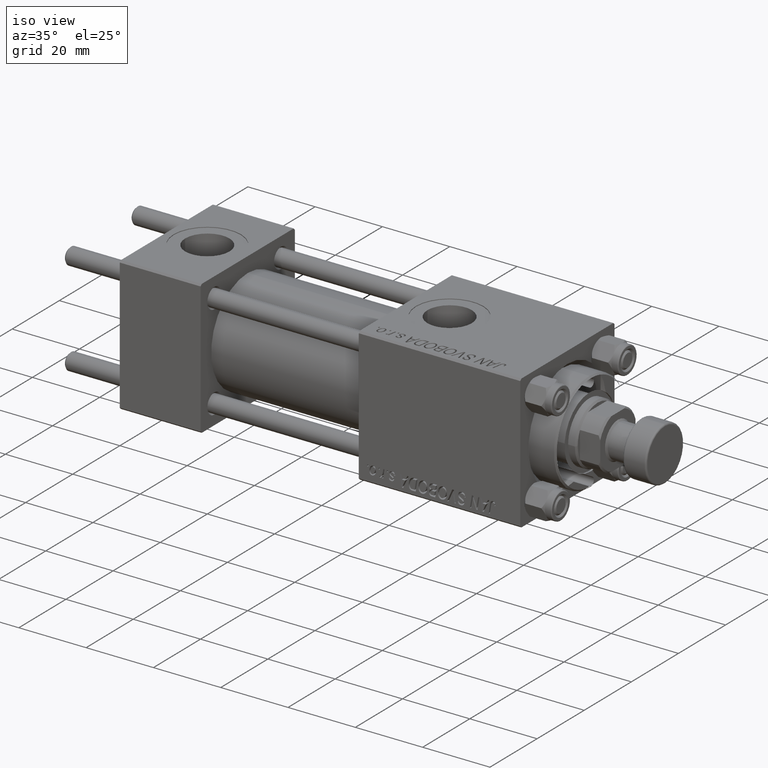
[diagram: clean part render]
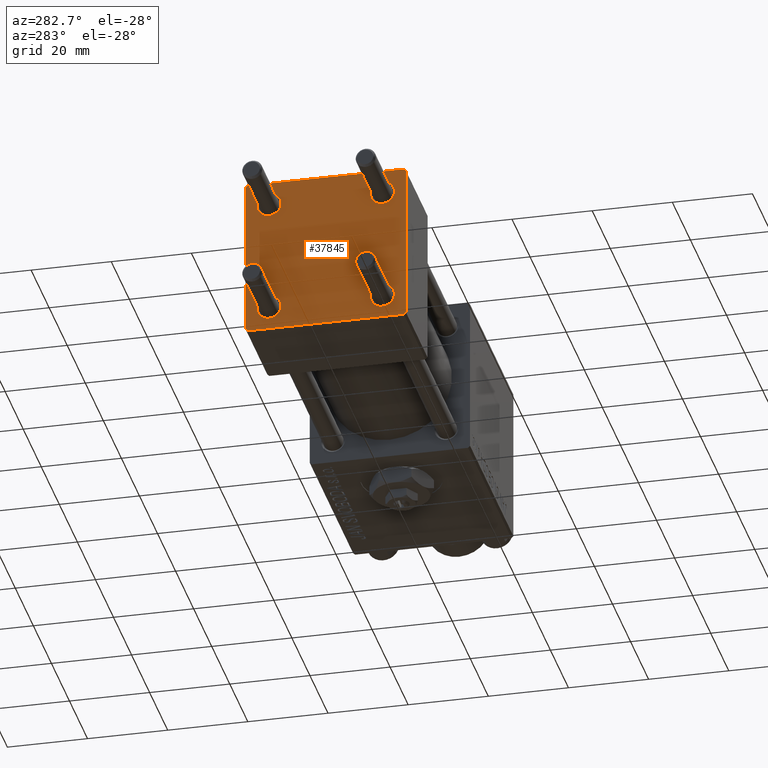
[diagram: tour spotlight — one face highlighted and labeled with its STEP entity id]
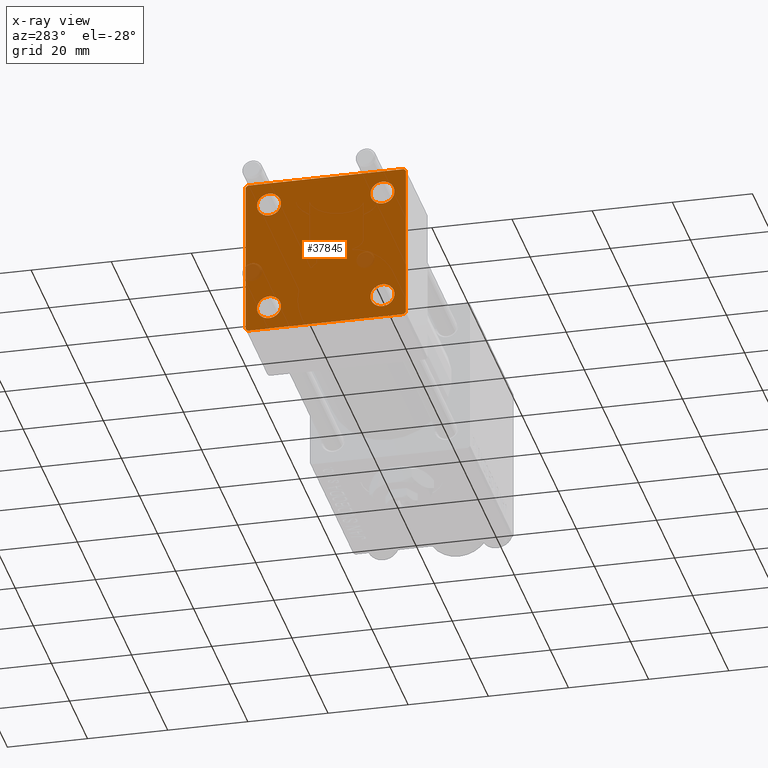
[diagram: x-ray of the same camera — body ghosted, this tour face saturated]
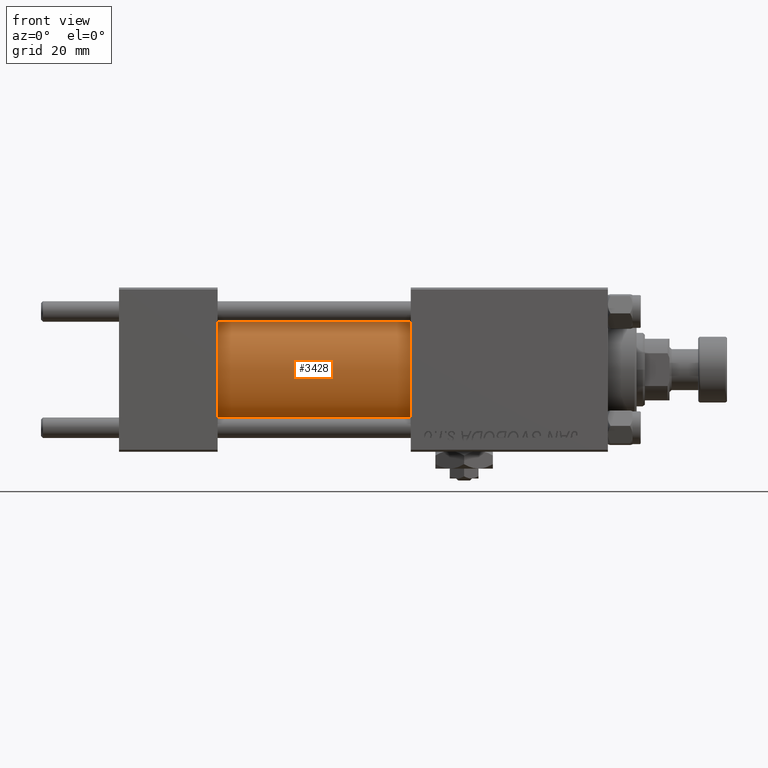
[diagram: tour spotlight — one face highlighted and labeled with its STEP entity id]
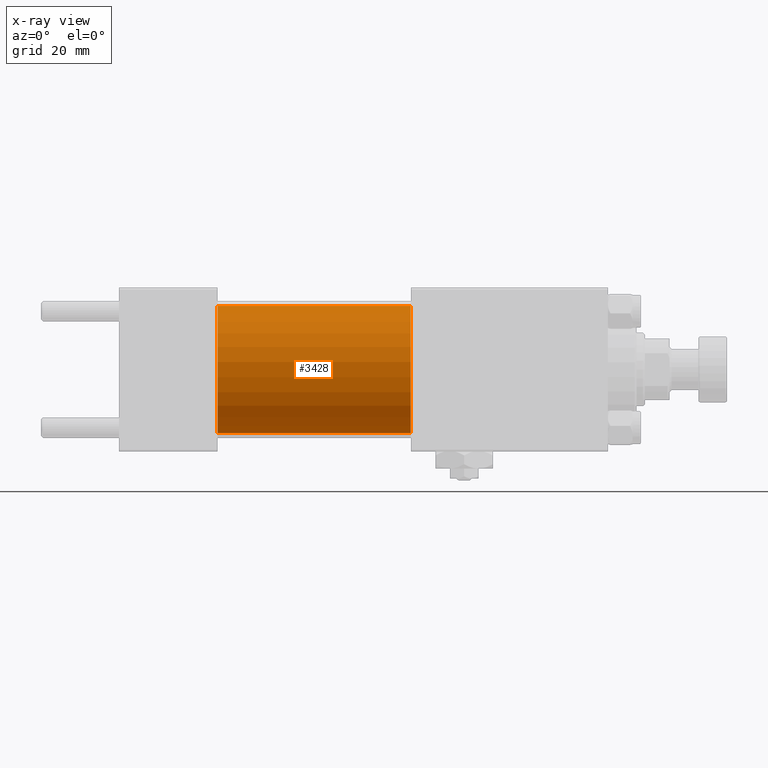
[diagram: x-ray of the same camera — body ghosted, this tour face saturated]
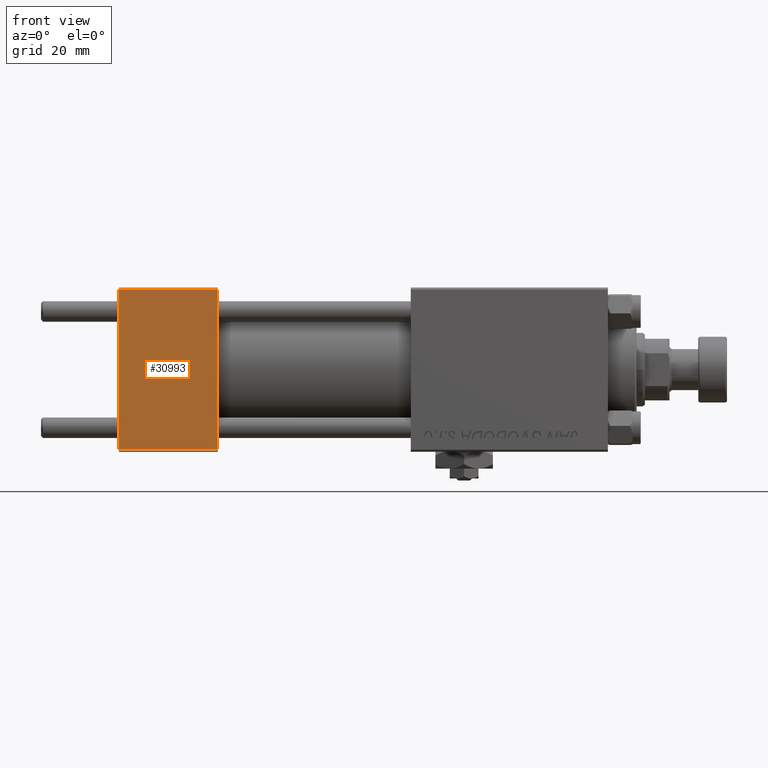
[diagram: tour spotlight — one face highlighted and labeled with its STEP entity id]
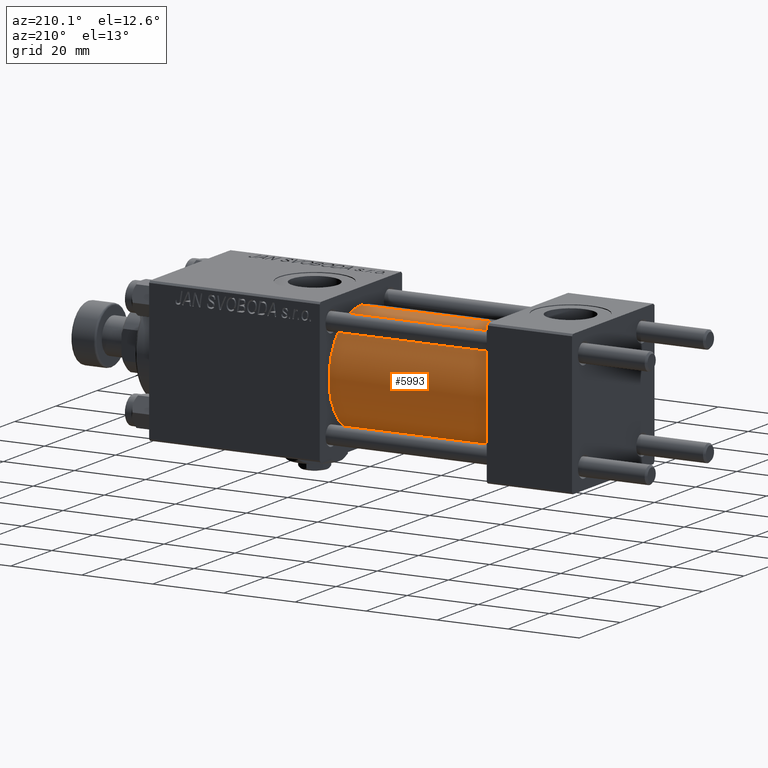
[diagram: tour spotlight — one face highlighted and labeled with its STEP entity id]
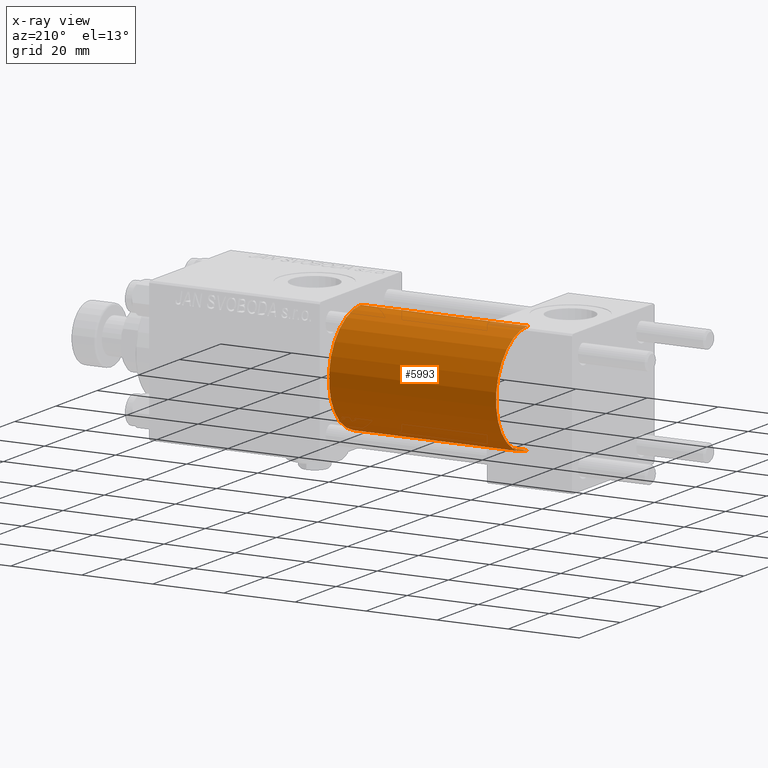
[diagram: x-ray of the same camera — body ghosted, this tour face saturated]
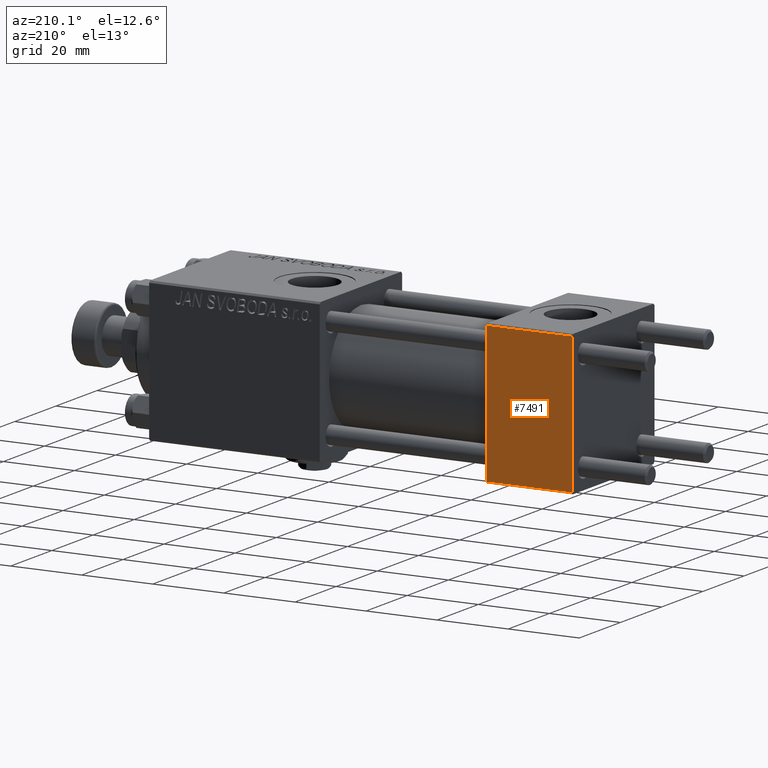
[diagram: tour spotlight — one face highlighted and labeled with its STEP entity id]
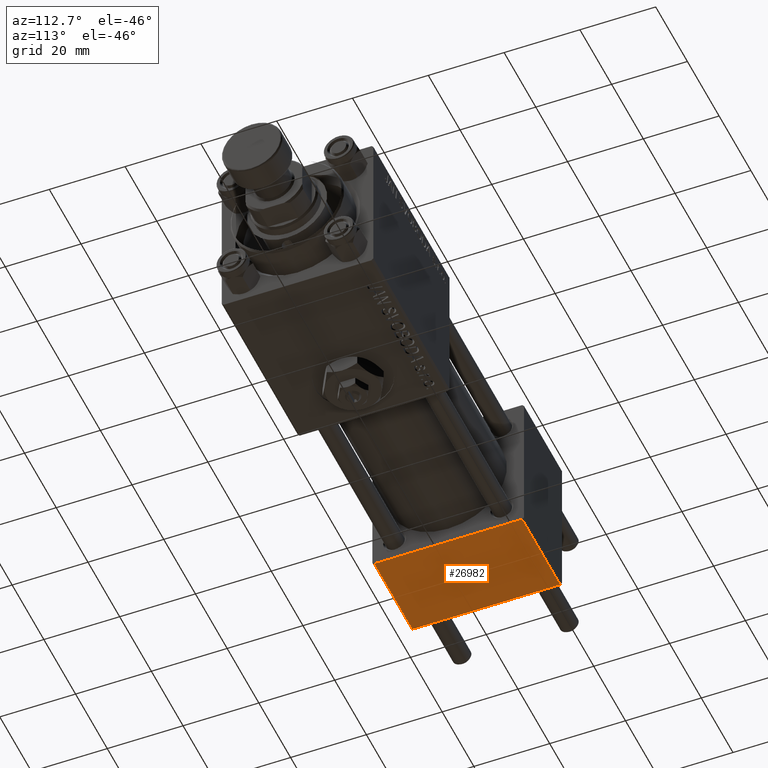
[diagram: tour spotlight — one face highlighted and labeled with its STEP entity id]
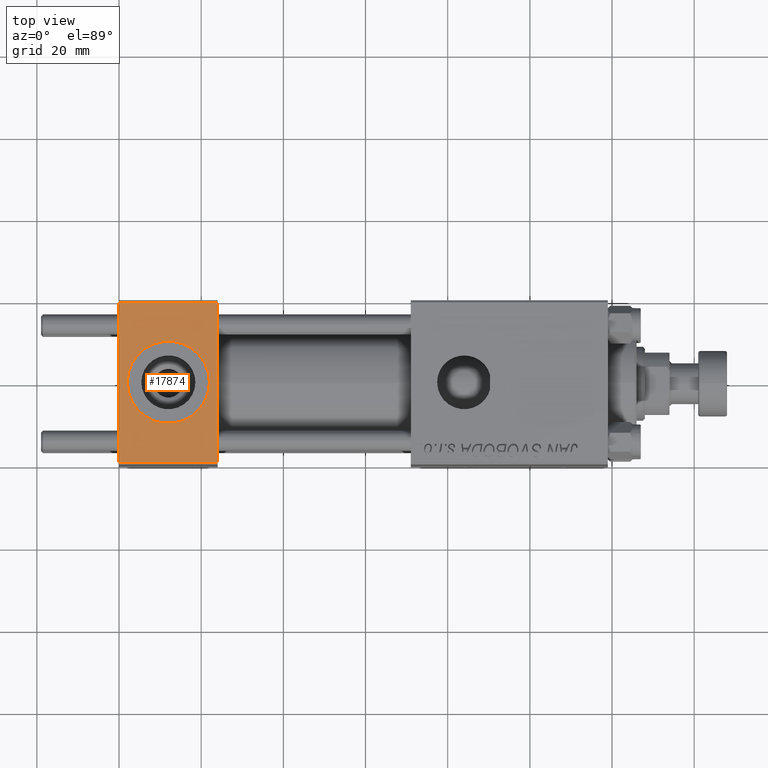
[diagram: tour spotlight — one face highlighted and labeled with its STEP entity id]
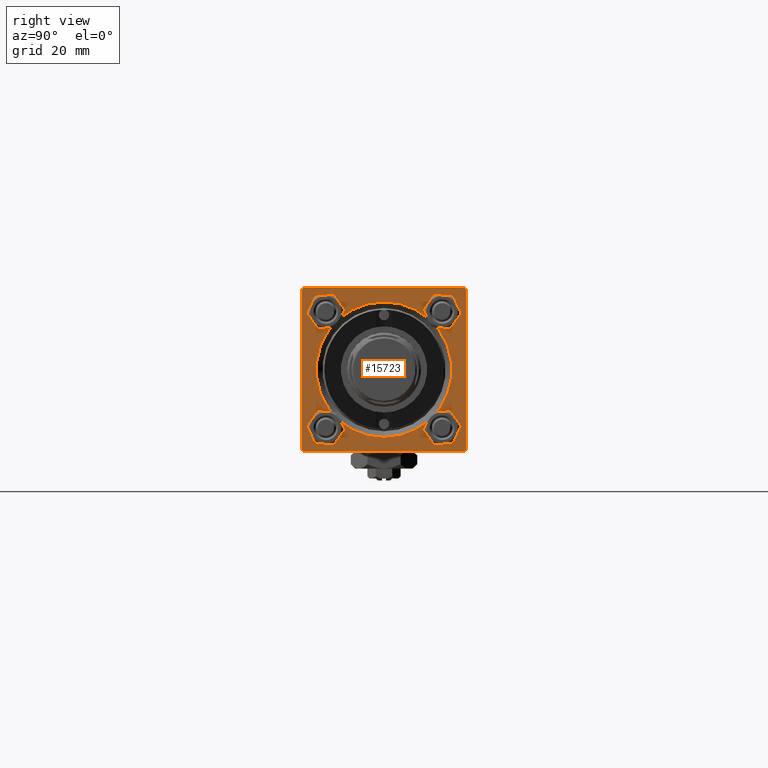
[diagram: tour spotlight — one face highlighted and labeled with its STEP entity id]
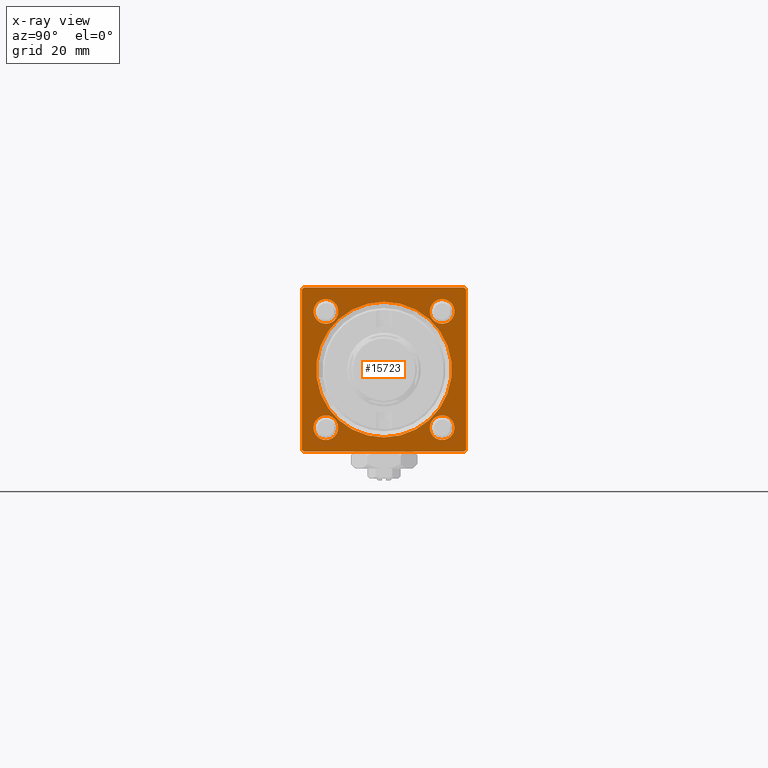
[diagram: x-ray of the same camera — body ghosted, this tour face saturated]
A machine part: a face-by-face anatomy tour. The part has 1195 B-rep faces; the first image is the clean iso view, then the 8 largest visible faces are spotlighted one at a time (largest first), each with its STEP entity span.

Face 1 — auxiliary view, entity #37845. An x-ray twin of the same camera follows (body ghosted, this face saturated) — the face is partly hidden behind the body. In plain terms, the highlighted planar face has unit normal (-1, 0, 0).
Definition (entity closure, byte-faithful):
#26 = DIRECTION ( 'NONE',  ( 0.000000000000000000, 0.000000000000000000, 1.000000000000000000 ) ) ;
#336 = DIRECTION ( 'NONE',  ( 0.000000000000000000, 0.000000000000000000, 1.000000000000000000 ) ) ;
#456 = AXIS2_PLACEMENT_3D ( 'NONE', #24330, #36395, #16419 ) ;
#544 = VERTEX_POINT ( 'NONE', #35439 ) ;
#998 = EDGE_CURVE ( 'NONE', #4123, #14235, #3649, .T. ) ;
#1198 = DIRECTION ( 'NONE',  ( -0.000000000000000000, 0.7071067811865500152, 0.7071067811865451302 ) ) ;
#1207 = CARTESIAN_POINT ( 'NONE',  ( 0.000000000000000000, 14.14999999999999858, -11.15000000000000036 ) ) ;
#1919 = VERTEX_POINT ( 'NONE', #27810 ) ;
#1925 = CARTESIAN_POINT ( 'NONE',  ( 0.000000000000000000, 14.14999999999999858, 14.15000000000000036 ) ) ;
#2115 = VERTEX_POINT ( 'NONE', #22267 ) ;
#3436 = LINE ( 'NONE', #26843, #20609 ) ;
#3638 = ORIENTED_EDGE ( 'NONE', *, *, #48537, .F. ) ;
#3649 = CIRCLE ( 'NONE', #43097, 3.000000000000000888 ) ;
#3826 = CIRCLE ( 'NONE', #456, 3.000000000000000888 ) ;
#4091 = AXIS2_PLACEMENT_3D ( 'NONE', #50044, #40836, #13483 ) ;
#4123 = VERTEX_POINT ( 'NONE', #35575 ) ;
#4464 = ORIENTED_EDGE ( 'NONE', *, *, #33934, .T. ) ;
#5333 = FACE_BOUND ( 'NONE', #10663, .T. ) ;
#6185 = DIRECTION ( 'NONE',  ( 1.000000000000000000, 0.000000000000000000, 0.000000000000000000 ) ) ;
#6237 = ORIENTED_EDGE ( 'NONE', *, *, #28738, .T. ) ;
#6439 = VERTEX_POINT ( 'NONE', #31862 ) ;
#7879 = CARTESIAN_POINT ( 'NONE',  ( 0.000000000000000000, 20.00000000000000000, 20.00000000000000000 ) ) ;
#8202 = CIRCLE ( 'NONE', #30055, 3.000000000000000888 ) ;
#8272 = EDGE_LOOP ( 'NONE', ( #4464, #30400, #17860, #6237, #3638, #31704, #21758, #14385 ) ) ;
#8507 = VERTEX_POINT ( 'NONE', #23865 ) ;
#8814 = CARTESIAN_POINT ( 'NONE',  ( 0.000000000000000000, 14.14999999999999858, 11.14999999999999858 ) ) ;
#9009 = FACE_BOUND ( 'NONE', #48988, .T. ) ;
#9365 = VERTEX_POINT ( 'NONE', #33051 ) ;
#9742 = ORIENTED_EDGE ( 'NONE', *, *, #35928, .T. ) ;
#9955 = EDGE_CURVE ( 'NONE', #8507, #2115, #38249, .T. ) ;
#10076 = EDGE_CURVE ( 'NONE', #6439, #9365, #23952, .T. ) ;
#10663 = EDGE_LOOP ( 'NONE', ( #26794, #27376 ) ) ;
#10804 = DIRECTION ( 'NONE',  ( 0.000000000000000000, 8.673617379884036705E-17, -1.000000000000000000 ) ) ;
#10835 = VECTOR ( 'NONE', #41203, 1000.000000000000000 ) ;
#11295 = CARTESIAN_POINT ( 'NONE',  ( 0.000000000000000000, 14.14999999999999858, 14.15000000000000036 ) ) ;
#11341 = ORIENTED_EDGE ( 'NONE', *, *, #37206, .T. ) ;
#11513 = CARTESIAN_POINT ( 'NONE',  ( -0.000000000000000000, 19.75000000000013500, 19.74999999999986144 ) ) ;
#11589 = EDGE_CURVE ( 'NONE', #9365, #6439, #49283, .T. ) ;
#11831 = LINE ( 'NONE', #7879, #36622 ) ;
#12087 = DIRECTION ( 'NONE',  ( 1.000000000000000000, 0.000000000000000000, 0.000000000000000000 ) ) ;
#12199 = AXIS2_PLACEMENT_3D ( 'NONE', #26173, #6185, #29847 ) ;
#12830 = VERTEX_POINT ( 'NONE', #22497 ) ;
#13068 = EDGE_CURVE ( 'NONE', #21232, #1919, #24118, .T. ) ;
#13475 = VERTEX_POINT ( 'NONE', #23843 ) ;
#13483 = DIRECTION ( 'NONE',  ( -0.000000000000000000, 0.000000000000000000, 1.000000000000000000 ) ) ;
#14235 = VERTEX_POINT ( 'NONE', #39487 ) ;
#14385 = ORIENTED_EDGE ( 'NONE', *, *, #51924, .T. ) ;
#14482 = EDGE_LOOP ( 'NONE', ( #40772, #42909 ) ) ;
#15076 = CARTESIAN_POINT ( 'NONE',  ( 0.000000000000000000, -19.75000000000020961, -19.74999999999979394 ) ) ;
#15107 = CARTESIAN_POINT ( 'NONE',  ( 0.000000000000000000, 20.00000000000000000, -20.00000000000000711 ) ) ;
#16310 = CARTESIAN_POINT ( 'NONE',  ( 0.000000000000000000, -20.00000000000000000, -19.49999999999999645 ) ) ;
#16419 = DIRECTION ( 'NONE',  ( 0.000000000000000000, 0.000000000000000000, 1.000000000000000000 ) ) ;
#16752 = LINE ( 'NONE', #28328, #10835 ) ;
#17860 = ORIENTED_EDGE ( 'NONE', *, *, #44389, .T. ) ;
#18509 = CARTESIAN_POINT ( 'NONE',  ( 0.000000000000000000, -19.50000000000000711, -20.00000000000000000 ) ) ;
#19561 = LINE ( 'NONE', #15107, #34372 ) ;
#19656 = LINE ( 'NONE', #11513, #40874 ) ;
#19999 = CARTESIAN_POINT ( 'NONE',  ( 0.000000000000000000, 14.14999999999999858, -14.15000000000000036 ) ) ;
#20319 = DIRECTION ( 'NONE',  ( 1.000000000000000000, 0.000000000000000000, 0.000000000000000000 ) ) ;
#20511 = DIRECTION ( 'NONE',  ( 0.000000000000000000, 0.000000000000000000, -1.000000000000000000 ) ) ;
#20609 = VECTOR ( 'NONE', #10804, 1000.000000000000000 ) ;
#20628 = VECTOR ( 'NONE', #1198, 1000.000000000000114 ) ;
#21232 = VERTEX_POINT ( 'NONE', #8814 ) ;
#21758 = ORIENTED_EDGE ( 'NONE', *, *, #46281, .F. ) ;
#22222 = VERTEX_POINT ( 'NONE', #1207 ) ;
#22267 = CARTESIAN_POINT ( 'NONE',  ( 0.000000000000000000, -19.49999999999999289, 19.99999999999998934 ) ) ;
#22363 = DIRECTION ( 'NONE',  ( 1.000000000000000000, 0.000000000000000000, 0.000000000000000000 ) ) ;
#22497 = CARTESIAN_POINT ( 'NONE',  ( 0.000000000000000000, 20.00000000000000000, 19.49999999999999289 ) ) ;
#22666 = DIRECTION ( 'NONE',  ( 1.000000000000000000, 0.000000000000000000, 0.000000000000000000 ) ) ;
#23570 = VECTOR ( 'NONE', #48600, 1000.000000000000000 ) ;
#23843 = CARTESIAN_POINT ( 'NONE',  ( 0.000000000000000000, 14.14999999999999858, -17.15000000000000213 ) ) ;
#23865 = CARTESIAN_POINT ( 'NONE',  ( 0.000000000000000000, -20.00000000000000355, 19.49999999999998224 ) ) ;
#23952 = CIRCLE ( 'NONE', #12199, 3.000000000000000888 ) ;
#24118 = CIRCLE ( 'NONE', #50155, 3.000000000000000888 ) ;
#24330 = CARTESIAN_POINT ( 'NONE',  ( 0.000000000000000000, -14.14999999999999503, -14.15000000000000391 ) ) ;
#24735 = ORIENTED_EDGE ( 'NONE', *, *, #31193, .T. ) ;
#25068 = FACE_OUTER_BOUND ( 'NONE', #8272, .T. ) ;
#26173 = CARTESIAN_POINT ( 'NONE',  ( 0.000000000000000000, -14.14999999999999503, 14.15000000000000391 ) ) ;
#26659 = DIRECTION ( 'NONE',  ( 0.000000000000000000, -0.7071067811865401342, 0.7071067811865549002 ) ) ;
#26794 = ORIENTED_EDGE ( 'NONE', *, *, #39078, .T. ) ;
#26843 = CARTESIAN_POINT ( 'NONE',  ( 0.000000000000000000, -20.00000000000000355, 19.99999999999998934 ) ) ;
#26947 = DIRECTION ( 'NONE',  ( 0.000000000000000000, -1.000000000000000000, 1.734723475976807094E-16 ) ) ;
#27376 = ORIENTED_EDGE ( 'NONE', *, *, #13068, .T. ) ;
#27810 = CARTESIAN_POINT ( 'NONE',  ( 0.000000000000000000, 14.14999999999999858, 17.15000000000000568 ) ) ;
#28089 = VECTOR ( 'NONE', #26659, 1000.000000000000000 ) ;
#28328 = CARTESIAN_POINT ( 'NONE',  ( -0.000000000000000000, 19.74999999999986855, -19.75000000000014211 ) ) ;
#28738 = EDGE_CURVE ( 'NONE', #34583, #38046, #35062, .T. ) ;
#29533 = DIRECTION ( 'NONE',  ( 0.000000000000000000, 0.000000000000000000, 1.000000000000000000 ) ) ;
#29754 = ORIENTED_EDGE ( 'NONE', *, *, #998, .T. ) ;
#29847 = DIRECTION ( 'NONE',  ( 0.000000000000000000, 0.000000000000000000, 1.000000000000000000 ) ) ;
#30055 = AXIS2_PLACEMENT_3D ( 'NONE', #34227, #22666, #42365 ) ;
#30103 = CIRCLE ( 'NONE', #40977, 3.000000000000000888 ) ;
#30400 = ORIENTED_EDGE ( 'NONE', *, *, #39495, .T. ) ;
#31193 = EDGE_CURVE ( 'NONE', #14235, #4123, #3826, .T. ) ;
#31704 = ORIENTED_EDGE ( 'NONE', *, *, #9955, .T. ) ;
#31747 = LINE ( 'NONE', #44096, #23570 ) ;
#31862 = CARTESIAN_POINT ( 'NONE',  ( 0.000000000000000000, -14.14999999999999503, 17.15000000000000568 ) ) ;
#32053 = DIRECTION ( 'NONE',  ( 1.000000000000000000, 0.000000000000000000, 0.000000000000000000 ) ) ;
#33051 = CARTESIAN_POINT ( 'NONE',  ( 0.000000000000000000, -14.14999999999999503, 11.15000000000000213 ) ) ;
#33200 = PLANE ( 'NONE',  #4091 ) ;
#33934 = EDGE_CURVE ( 'NONE', #12830, #46866, #11831, .T. ) ;
#33977 = FACE_BOUND ( 'NONE', #14482, .T. ) ;
#34227 = CARTESIAN_POINT ( 'NONE',  ( 0.000000000000000000, 14.14999999999999858, -14.15000000000000036 ) ) ;
#34372 = VECTOR ( 'NONE', #26947, 1000.000000000000000 ) ;
#34583 = VERTEX_POINT ( 'NONE', #18509 ) ;
#34636 = CARTESIAN_POINT ( 'NONE',  ( 0.000000000000000000, 20.00000000000000000, -19.50000000000002132 ) ) ;
#34957 = CARTESIAN_POINT ( 'NONE',  ( 0.000000000000000000, -14.14999999999999503, 14.15000000000000391 ) ) ;
#35062 = LINE ( 'NONE', #15076, #28089 ) ;
#35439 = CARTESIAN_POINT ( 'NONE',  ( 0.000000000000000000, 19.50000000000000711, -20.00000000000000711 ) ) ;
#35575 = CARTESIAN_POINT ( 'NONE',  ( 0.000000000000000000, -14.14999999999999503, -17.15000000000000568 ) ) ;
#35805 = AXIS2_PLACEMENT_3D ( 'NONE', #34957, #22363, #38382 ) ;
#35928 = EDGE_CURVE ( 'NONE', #22222, #13475, #8202, .T. ) ;
#36016 = AXIS2_PLACEMENT_3D ( 'NONE', #11295, #32053, #39433 ) ;
#36395 = DIRECTION ( 'NONE',  ( 1.000000000000000000, 0.000000000000000000, 0.000000000000000000 ) ) ;
#36622 = VECTOR ( 'NONE', #20511, 1000.000000000000000 ) ;
#37206 = EDGE_CURVE ( 'NONE', #13475, #22222, #30103, .T. ) ;
#37845 = ADVANCED_FACE ( 'NONE', ( #33977, #9009, #41880, #5333, #25068 ), #33200, .T. ) ;
#38046 = VERTEX_POINT ( 'NONE', #16310 ) ;
#38249 = LINE ( 'NONE', #41685, #20628 ) ;
#38382 = DIRECTION ( 'NONE',  ( 0.000000000000000000, 0.000000000000000000, 1.000000000000000000 ) ) ;
#39078 = EDGE_CURVE ( 'NONE', #1919, #21232, #46102, .T. ) ;
#39433 = DIRECTION ( 'NONE',  ( 0.000000000000000000, 0.000000000000000000, 1.000000000000000000 ) ) ;
#39487 = CARTESIAN_POINT ( 'NONE',  ( 0.000000000000000000, -14.14999999999999503, -11.15000000000000391 ) ) ;
#39495 = EDGE_CURVE ( 'NONE', #46866, #544, #16752, .T. ) ;
#40163 = DIRECTION ( 'NONE',  ( 0.000000000000000000, 0.7071067811865425767, -0.7071067811865525687 ) ) ;
#40772 = ORIENTED_EDGE ( 'NONE', *, *, #10076, .T. ) ;
#40836 = DIRECTION ( 'NONE',  ( -1.000000000000000000, 0.000000000000000000, -0.000000000000000000 ) ) ;
#40874 = VECTOR ( 'NONE', #40163, 999.9999999999998863 ) ;
#40977 = AXIS2_PLACEMENT_3D ( 'NONE', #19999, #12087, #26 ) ;
#41203 = DIRECTION ( 'NONE',  ( -0.000000000000000000, -0.7071067811865524577, -0.7071067811865426878 ) ) ;
#41685 = CARTESIAN_POINT ( 'NONE',  ( -0.000000000000000000, -19.74999999999992539, 19.75000000000006395 ) ) ;
#41880 = FACE_BOUND ( 'NONE', #46364, .T. ) ;
#42365 = DIRECTION ( 'NONE',  ( 0.000000000000000000, 0.000000000000000000, 1.000000000000000000 ) ) ;
#42909 = ORIENTED_EDGE ( 'NONE', *, *, #11589, .T. ) ;
#43097 = AXIS2_PLACEMENT_3D ( 'NONE', #43970, #20319, #336 ) ;
#43970 = CARTESIAN_POINT ( 'NONE',  ( 0.000000000000000000, -14.14999999999999503, -14.15000000000000391 ) ) ;
#44096 = CARTESIAN_POINT ( 'NONE',  ( 0.000000000000000000, 20.00000000000000000, 20.00000000000000000 ) ) ;
#44389 = EDGE_CURVE ( 'NONE', #544, #34583, #19561, .T. ) ;
#46102 = CIRCLE ( 'NONE', #36016, 3.000000000000000888 ) ;
#46175 = CARTESIAN_POINT ( 'NONE',  ( 0.000000000000000000, 19.50000000000000000, 20.00000000000000000 ) ) ;
#46281 = EDGE_CURVE ( 'NONE', #48966, #2115, #31747, .T. ) ;
#46360 = DIRECTION ( 'NONE',  ( 1.000000000000000000, 0.000000000000000000, 0.000000000000000000 ) ) ;
#46364 = EDGE_LOOP ( 'NONE', ( #9742, #11341 ) ) ;
#46866 = VERTEX_POINT ( 'NONE', #34636 ) ;
#48537 = EDGE_CURVE ( 'NONE', #8507, #38046, #3436, .T. ) ;
#48600 = DIRECTION ( 'NONE',  ( 0.000000000000000000, -1.000000000000000000, -2.602085213965210149E-16 ) ) ;
#48966 = VERTEX_POINT ( 'NONE', #46175 ) ;
#48988 = EDGE_LOOP ( 'NONE', ( #24735, #29754 ) ) ;
#49283 = CIRCLE ( 'NONE', #35805, 3.000000000000000888 ) ;
#50044 = CARTESIAN_POINT ( 'NONE',  ( 0.000000000000000000, 0.000000000000000000, 0.000000000000000000 ) ) ;
#50155 = AXIS2_PLACEMENT_3D ( 'NONE', #1925, #46360, #29533 ) ;
#51924 = EDGE_CURVE ( 'NONE', #48966, #12830, #19656, .T. ) ;

Face 2 — front view, entity #3428. An x-ray twin of the same camera follows (body ghosted, this face saturated) — the face is partly hidden behind the body. In plain terms, the highlighted cylindrical surface (partial cylindrical patch) has radius 15.5 mm, axis along (-1, -0, -0).
Definition (entity closure, byte-faithful):
#344 = DIRECTION ( 'NONE',  ( -1.000000000000000000, -0.000000000000000000, -0.000000000000000000 ) ) ;
#948 = VERTEX_POINT ( 'NONE', #7698 ) ;
#2290 = VERTEX_POINT ( 'NONE', #28530 ) ;
#2911 = CARTESIAN_POINT ( 'NONE',  ( 24.00000000000000000, 0.000000000000000000, 0.000000000000000000 ) ) ;
#3428 = ADVANCED_FACE ( 'NONE', ( #20062 ), #24007, .T. ) ;
#4199 = VECTOR ( 'NONE', #43630, 1000.000000000000000 ) ;
#4769 = EDGE_LOOP ( 'NONE', ( #15587, #35665, #43015, #51201 ) ) ;
#4946 = CIRCLE ( 'NONE', #34316, 15.50000000000000000 ) ;
#7698 = CARTESIAN_POINT ( 'NONE',  ( 71.00000000000001421, 1.898202538678397557E-15, -15.50000000000000000 ) ) ;
#10087 = VERTEX_POINT ( 'NONE', #41163 ) ;
#10444 = AXIS2_PLACEMENT_3D ( 'NONE', #12679, #344, #40036 ) ;
#10754 = AXIS2_PLACEMENT_3D ( 'NONE', #32459, #49037, #40600 ) ;
#12679 = CARTESIAN_POINT ( 'NONE',  ( 71.00000000000001421, 0.000000000000000000, 0.000000000000000000 ) ) ;
#14774 = EDGE_CURVE ( 'NONE', #10087, #948, #38436, .T. ) ;
#15587 = ORIENTED_EDGE ( 'NONE', *, *, #45180, .F. ) ;
#17745 = VERTEX_POINT ( 'NONE', #21618 ) ;
#17908 = EDGE_CURVE ( 'NONE', #17745, #2290, #4946, .T. ) ;
#18947 = DIRECTION ( 'NONE',  ( 1.000000000000000000, 0.000000000000000000, 0.000000000000000000 ) ) ;
#20062 = FACE_OUTER_BOUND ( 'NONE', #4769, .T. ) ;
#21482 = DIRECTION ( 'NONE',  ( -1.000000000000000000, -0.000000000000000000, -0.000000000000000000 ) ) ;
#21618 = CARTESIAN_POINT ( 'NONE',  ( 24.00000000000000000, 0.000000000000000000, 15.50000000000000000 ) ) ;
#23648 = LINE ( 'NONE', #31528, #4199 ) ;
#24007 = CYLINDRICAL_SURFACE ( 'NONE', #10444, 15.50000000000000000 ) ;
#27356 = DIRECTION ( 'NONE',  ( 0.000000000000000000, 0.000000000000000000, 1.000000000000000000 ) ) ;
#27533 = EDGE_CURVE ( 'NONE', #10087, #17745, #49108, .T. ) ;
#28530 = CARTESIAN_POINT ( 'NONE',  ( 24.00000000000000000, 1.898202538678397557E-15, -15.50000000000000000 ) ) ;
#31528 = CARTESIAN_POINT ( 'NONE',  ( 71.00000000000001421, 1.898202538678397557E-15, -15.50000000000000000 ) ) ;
#32459 = CARTESIAN_POINT ( 'NONE',  ( 71.00000000000001421, 0.000000000000000000, 0.000000000000000000 ) ) ;
#34316 = AXIS2_PLACEMENT_3D ( 'NONE', #2911, #18947, #27356 ) ;
#35665 = ORIENTED_EDGE ( 'NONE', *, *, #14774, .F. ) ;
#38436 = CIRCLE ( 'NONE', #10754, 15.50000000000000000 ) ;
#40036 = DIRECTION ( 'NONE',  ( 0.000000000000000000, 0.000000000000000000, 1.000000000000000000 ) ) ;
#40600 = DIRECTION ( 'NONE',  ( 0.000000000000000000, 0.000000000000000000, -1.000000000000000000 ) ) ;
#41163 = CARTESIAN_POINT ( 'NONE',  ( 71.00000000000001421, 0.000000000000000000, 15.50000000000000000 ) ) ;
#41622 = VECTOR ( 'NONE', #21482, 1000.000000000000000 ) ;
#43015 = ORIENTED_EDGE ( 'NONE', *, *, #27533, .T. ) ;
#43630 = DIRECTION ( 'NONE',  ( -1.000000000000000000, -0.000000000000000000, -0.000000000000000000 ) ) ;
#45180 = EDGE_CURVE ( 'NONE', #948, #2290, #23648, .T. ) ;
#49037 = DIRECTION ( 'NONE',  ( 1.000000000000000000, 0.000000000000000000, 0.000000000000000000 ) ) ;
#49108 = LINE ( 'NONE', #49639, #41622 ) ;
#49639 = CARTESIAN_POINT ( 'NONE',  ( 71.00000000000001421, 0.000000000000000000, 15.50000000000000000 ) ) ;
#51201 = ORIENTED_EDGE ( 'NONE', *, *, #17908, .T. ) ;

Face 3 — front view, entity #30993. In plain terms, the highlighted planar face has unit normal (0, 1, 0).
Definition (entity closure, byte-faithful):
#3342 = ORIENTED_EDGE ( 'NONE', *, *, #18719, .F. ) ;
#3436 = LINE ( 'NONE', #26843, #20609 ) ;
#4292 = VERTEX_POINT ( 'NONE', #17422 ) ;
#4669 = VECTOR ( 'NONE', #26327, 1000.000000000000000 ) ;
#6605 = CARTESIAN_POINT ( 'NONE',  ( 24.00000000000000000, -20.00000000000000000, -19.49999999999999645 ) ) ;
#8507 = VERTEX_POINT ( 'NONE', #23865 ) ;
#8625 = CARTESIAN_POINT ( 'NONE',  ( 24.00000000000000000, -20.00000000000000355, 19.49999999999998224 ) ) ;
#10804 = DIRECTION ( 'NONE',  ( 0.000000000000000000, 8.673617379884036705E-17, -1.000000000000000000 ) ) ;
#16310 = CARTESIAN_POINT ( 'NONE',  ( 0.000000000000000000, -20.00000000000000000, -19.49999999999999645 ) ) ;
#17422 = CARTESIAN_POINT ( 'NONE',  ( 24.00000000000000000, -20.00000000000000355, 19.49999999999998224 ) ) ;
#18719 = EDGE_CURVE ( 'NONE', #4292, #26039, #29212, .T. ) ;
#20609 = VECTOR ( 'NONE', #10804, 1000.000000000000000 ) ;
#21903 = EDGE_CURVE ( 'NONE', #4292, #8507, #37019, .T. ) ;
#23158 = LINE ( 'NONE', #6605, #4669 ) ;
#23865 = CARTESIAN_POINT ( 'NONE',  ( 0.000000000000000000, -20.00000000000000355, 19.49999999999998224 ) ) ;
#25169 = CARTESIAN_POINT ( 'NONE',  ( 24.00000000000000000, -20.00000000000000355, 19.99999999999998934 ) ) ;
#26039 = VERTEX_POINT ( 'NONE', #44661 ) ;
#26327 = DIRECTION ( 'NONE',  ( 1.000000000000000000, 0.000000000000000000, 0.000000000000000000 ) ) ;
#26843 = CARTESIAN_POINT ( 'NONE',  ( 0.000000000000000000, -20.00000000000000355, 19.99999999999998934 ) ) ;
#29212 = LINE ( 'NONE', #45005, #33542 ) ;
#30993 = ADVANCED_FACE ( 'NONE', ( #44880 ), #49106, .F. ) ;
#32378 = DIRECTION ( 'NONE',  ( 0.000000000000000000, 8.673617379884036705E-17, -1.000000000000000000 ) ) ;
#32561 = DIRECTION ( 'NONE',  ( -1.000000000000000000, 0.000000000000000000, 0.000000000000000000 ) ) ;
#33542 = VECTOR ( 'NONE', #32378, 1000.000000000000000 ) ;
#33837 = ORIENTED_EDGE ( 'NONE', *, *, #48467, .T. ) ;
#33858 = VECTOR ( 'NONE', #32561, 1000.000000000000000 ) ;
#37019 = LINE ( 'NONE', #8625, #33858 ) ;
#37147 = EDGE_LOOP ( 'NONE', ( #48886, #33837, #3342, #44122 ) ) ;
#38046 = VERTEX_POINT ( 'NONE', #16310 ) ;
#38539 = DIRECTION ( 'NONE',  ( -0.000000000000000000, 1.000000000000000000, 8.673617379884036705E-17 ) ) ;
#42486 = DIRECTION ( 'NONE',  ( 0.000000000000000000, -8.673617379884036705E-17, 1.000000000000000000 ) ) ;
#43272 = AXIS2_PLACEMENT_3D ( 'NONE', #25169, #38539, #42486 ) ;
#44122 = ORIENTED_EDGE ( 'NONE', *, *, #21903, .T. ) ;
#44661 = CARTESIAN_POINT ( 'NONE',  ( 24.00000000000000000, -20.00000000000000000, -19.49999999999999645 ) ) ;
#44880 = FACE_OUTER_BOUND ( 'NONE', #37147, .T. ) ;
#45005 = CARTESIAN_POINT ( 'NONE',  ( 24.00000000000000000, -20.00000000000000355, 19.99999999999998934 ) ) ;
#48467 = EDGE_CURVE ( 'NONE', #38046, #26039, #23158, .T. ) ;
#48537 = EDGE_CURVE ( 'NONE', #8507, #38046, #3436, .T. ) ;
#48886 = ORIENTED_EDGE ( 'NONE', *, *, #48537, .T. ) ;
#49106 = PLANE ( 'NONE',  #43272 ) ;

Face 4 — auxiliary view, entity #5993. An x-ray twin of the same camera follows (body ghosted, this face saturated) — the face is partly hidden behind the body. In plain terms, the highlighted cylindrical surface (partial cylindrical patch) has radius 15.5 mm, axis along (-1, -0, -0).
Definition (entity closure, byte-faithful):
#948 = VERTEX_POINT ( 'NONE', #7698 ) ;
#2290 = VERTEX_POINT ( 'NONE', #28530 ) ;
#4199 = VECTOR ( 'NONE', #43630, 1000.000000000000000 ) ;
#5993 = ADVANCED_FACE ( 'NONE', ( #46190 ), #49879, .T. ) ;
#7635 = AXIS2_PLACEMENT_3D ( 'NONE', #22772, #39038, #39304 ) ;
#7698 = CARTESIAN_POINT ( 'NONE',  ( 71.00000000000001421, 1.898202538678397557E-15, -15.50000000000000000 ) ) ;
#10087 = VERTEX_POINT ( 'NONE', #41163 ) ;
#12265 = EDGE_LOOP ( 'NONE', ( #21180, #41608, #38805, #22810 ) ) ;
#15458 = AXIS2_PLACEMENT_3D ( 'NONE', #33299, #30380, #38276 ) ;
#17745 = VERTEX_POINT ( 'NONE', #21618 ) ;
#21180 = ORIENTED_EDGE ( 'NONE', *, *, #47235, .F. ) ;
#21482 = DIRECTION ( 'NONE',  ( -1.000000000000000000, -0.000000000000000000, -0.000000000000000000 ) ) ;
#21618 = CARTESIAN_POINT ( 'NONE',  ( 24.00000000000000000, 0.000000000000000000, 15.50000000000000000 ) ) ;
#22772 = CARTESIAN_POINT ( 'NONE',  ( 71.00000000000001421, 0.000000000000000000, 0.000000000000000000 ) ) ;
#22810 = ORIENTED_EDGE ( 'NONE', *, *, #27533, .F. ) ;
#23648 = LINE ( 'NONE', #31528, #4199 ) ;
#27533 = EDGE_CURVE ( 'NONE', #10087, #17745, #49108, .T. ) ;
#28530 = CARTESIAN_POINT ( 'NONE',  ( 24.00000000000000000, 1.898202538678397557E-15, -15.50000000000000000 ) ) ;
#30380 = DIRECTION ( 'NONE',  ( -1.000000000000000000, -0.000000000000000000, -0.000000000000000000 ) ) ;
#31138 = CIRCLE ( 'NONE', #7635, 15.50000000000000000 ) ;
#31528 = CARTESIAN_POINT ( 'NONE',  ( 71.00000000000001421, 1.898202538678397557E-15, -15.50000000000000000 ) ) ;
#31684 = DIRECTION ( 'NONE',  ( 0.000000000000000000, 0.000000000000000000, 1.000000000000000000 ) ) ;
#33299 = CARTESIAN_POINT ( 'NONE',  ( 71.00000000000001421, 0.000000000000000000, 0.000000000000000000 ) ) ;
#35370 = DIRECTION ( 'NONE',  ( 1.000000000000000000, 0.000000000000000000, 0.000000000000000000 ) ) ;
#35687 = CIRCLE ( 'NONE', #43281, 15.50000000000000000 ) ;
#38276 = DIRECTION ( 'NONE',  ( 0.000000000000000000, 0.000000000000000000, 1.000000000000000000 ) ) ;
#38805 = ORIENTED_EDGE ( 'NONE', *, *, #47870, .T. ) ;
#39038 = DIRECTION ( 'NONE',  ( 1.000000000000000000, 0.000000000000000000, 0.000000000000000000 ) ) ;
#39304 = DIRECTION ( 'NONE',  ( 0.000000000000000000, 0.000000000000000000, -1.000000000000000000 ) ) ;
#39570 = CARTESIAN_POINT ( 'NONE',  ( 24.00000000000000000, 0.000000000000000000, 0.000000000000000000 ) ) ;
#41163 = CARTESIAN_POINT ( 'NONE',  ( 71.00000000000001421, 0.000000000000000000, 15.50000000000000000 ) ) ;
#41608 = ORIENTED_EDGE ( 'NONE', *, *, #45180, .T. ) ;
#41622 = VECTOR ( 'NONE', #21482, 1000.000000000000000 ) ;
#43281 = AXIS2_PLACEMENT_3D ( 'NONE', #39570, #35370, #31684 ) ;
#43630 = DIRECTION ( 'NONE',  ( -1.000000000000000000, -0.000000000000000000, -0.000000000000000000 ) ) ;
#45180 = EDGE_CURVE ( 'NONE', #948, #2290, #23648, .T. ) ;
#46190 = FACE_OUTER_BOUND ( 'NONE', #12265, .T. ) ;
#47235 = EDGE_CURVE ( 'NONE', #948, #10087, #31138, .T. ) ;
#47870 = EDGE_CURVE ( 'NONE', #2290, #17745, #35687, .T. ) ;
#49108 = LINE ( 'NONE', #49639, #41622 ) ;
#49639 = CARTESIAN_POINT ( 'NONE',  ( 71.00000000000001421, 0.000000000000000000, 15.50000000000000000 ) ) ;
#49879 = CYLINDRICAL_SURFACE ( 'NONE', #15458, 15.50000000000000000 ) ;

Face 5 — auxiliary view, entity #7491. In plain terms, the highlighted planar face has unit normal (0, 1, 0).
Definition (entity closure, byte-faithful):
#3463 = VERTEX_POINT ( 'NONE', #27695 ) ;
#3813 = ORIENTED_EDGE ( 'NONE', *, *, #41337, .T. ) ;
#3967 = VECTOR ( 'NONE', #23563, 1000.000000000000000 ) ;
#5172 = DIRECTION ( 'NONE',  ( 1.000000000000000000, 0.000000000000000000, 0.000000000000000000 ) ) ;
#6471 = PLANE ( 'NONE',  #40694 ) ;
#7491 = ADVANCED_FACE ( 'NONE', ( #42480 ), #6471, .T. ) ;
#7606 = DIRECTION ( 'NONE',  ( 0.000000000000000000, 0.000000000000000000, -1.000000000000000000 ) ) ;
#7879 = CARTESIAN_POINT ( 'NONE',  ( 0.000000000000000000, 20.00000000000000000, 20.00000000000000000 ) ) ;
#11732 = VECTOR ( 'NONE', #7606, 1000.000000000000000 ) ;
#11831 = LINE ( 'NONE', #7879, #36622 ) ;
#12830 = VERTEX_POINT ( 'NONE', #22497 ) ;
#16920 = VERTEX_POINT ( 'NONE', #40477 ) ;
#20511 = DIRECTION ( 'NONE',  ( 0.000000000000000000, 0.000000000000000000, -1.000000000000000000 ) ) ;
#22497 = CARTESIAN_POINT ( 'NONE',  ( 0.000000000000000000, 20.00000000000000000, 19.49999999999999289 ) ) ;
#23563 = DIRECTION ( 'NONE',  ( -1.000000000000000000, 0.000000000000000000, 0.000000000000000000 ) ) ;
#27695 = CARTESIAN_POINT ( 'NONE',  ( 24.00000000000000000, 20.00000000000000000, 19.49999999999999289 ) ) ;
#28818 = LINE ( 'NONE', #41189, #29382 ) ;
#29382 = VECTOR ( 'NONE', #5172, 1000.000000000000000 ) ;
#29611 = CARTESIAN_POINT ( 'NONE',  ( 24.00000000000000000, 20.00000000000000000, 20.00000000000000000 ) ) ;
#32045 = ORIENTED_EDGE ( 'NONE', *, *, #35342, .T. ) ;
#32303 = CARTESIAN_POINT ( 'NONE',  ( 24.00000000000000000, 20.00000000000000000, 20.00000000000000000 ) ) ;
#32478 = LINE ( 'NONE', #39830, #3967 ) ;
#33934 = EDGE_CURVE ( 'NONE', #12830, #46866, #11831, .T. ) ;
#34636 = CARTESIAN_POINT ( 'NONE',  ( 0.000000000000000000, 20.00000000000000000, -19.50000000000002132 ) ) ;
#35342 = EDGE_CURVE ( 'NONE', #16920, #46866, #32478, .T. ) ;
#36622 = VECTOR ( 'NONE', #20511, 1000.000000000000000 ) ;
#38008 = DIRECTION ( 'NONE',  ( -0.000000000000000000, 1.000000000000000000, 0.000000000000000000 ) ) ;
#38899 = ORIENTED_EDGE ( 'NONE', *, *, #33934, .F. ) ;
#39830 = CARTESIAN_POINT ( 'NONE',  ( 24.00000000000000000, 20.00000000000000000, -19.50000000000002132 ) ) ;
#40477 = CARTESIAN_POINT ( 'NONE',  ( 24.00000000000000000, 20.00000000000000000, -19.50000000000002132 ) ) ;
#40694 = AXIS2_PLACEMENT_3D ( 'NONE', #29611, #38008, #45662 ) ;
#41067 = EDGE_CURVE ( 'NONE', #3463, #16920, #44144, .T. ) ;
#41189 = CARTESIAN_POINT ( 'NONE',  ( 24.00000000000000000, 20.00000000000000000, 19.49999999999999289 ) ) ;
#41337 = EDGE_CURVE ( 'NONE', #12830, #3463, #28818, .T. ) ;
#42480 = FACE_OUTER_BOUND ( 'NONE', #50050, .T. ) ;
#42751 = ORIENTED_EDGE ( 'NONE', *, *, #41067, .T. ) ;
#44144 = LINE ( 'NONE', #32303, #11732 ) ;
#45662 = DIRECTION ( 'NONE',  ( 0.000000000000000000, -0.000000000000000000, 1.000000000000000000 ) ) ;
#46866 = VERTEX_POINT ( 'NONE', #34636 ) ;
#50050 = EDGE_LOOP ( 'NONE', ( #42751, #32045, #38899, #3813 ) ) ;

Face 6 — auxiliary view, entity #26982. In plain terms, the highlighted planar face has unit normal (0, -0, -1).
Definition (entity closure, byte-faithful):
#544 = VERTEX_POINT ( 'NONE', #35439 ) ;
#783 = VECTOR ( 'NONE', #14837, 1000.000000000000000 ) ;
#2199 = FACE_OUTER_BOUND ( 'NONE', #29015, .T. ) ;
#2966 = CARTESIAN_POINT ( 'NONE',  ( 24.00000000000000000, 20.00000000000000000, -20.00000000000000711 ) ) ;
#3670 = VECTOR ( 'NONE', #20166, 1000.000000000000000 ) ;
#3778 = CARTESIAN_POINT ( 'NONE',  ( 0.000000000000000000, -19.50000000000000711, -20.00000000000000000 ) ) ;
#4712 = CARTESIAN_POINT ( 'NONE',  ( 24.00000000000000000, 19.50000000000000711, -20.00000000000000711 ) ) ;
#11179 = CARTESIAN_POINT ( 'NONE',  ( 24.00000000000000000, 19.50000000000000711, -20.00000000000000711 ) ) ;
#14621 = VERTEX_POINT ( 'NONE', #11179 ) ;
#14837 = DIRECTION ( 'NONE',  ( -1.000000000000000000, 0.000000000000000000, 0.000000000000000000 ) ) ;
#15107 = CARTESIAN_POINT ( 'NONE',  ( 0.000000000000000000, 20.00000000000000000, -20.00000000000000711 ) ) ;
#15143 = CARTESIAN_POINT ( 'NONE',  ( 24.00000000000000000, -19.50000000000000711, -20.00000000000000000 ) ) ;
#15949 = CARTESIAN_POINT ( 'NONE',  ( 24.00000000000000000, 20.00000000000000000, -20.00000000000000711 ) ) ;
#18509 = CARTESIAN_POINT ( 'NONE',  ( 0.000000000000000000, -19.50000000000000711, -20.00000000000000000 ) ) ;
#18997 = DIRECTION ( 'NONE',  ( 0.000000000000000000, -1.734723475976806848E-16, -1.000000000000000000 ) ) ;
#19561 = LINE ( 'NONE', #15107, #34372 ) ;
#20166 = DIRECTION ( 'NONE',  ( 0.000000000000000000, -1.000000000000000000, 1.734723475976807094E-16 ) ) ;
#22703 = DIRECTION ( 'NONE',  ( 0.000000000000000000, 1.000000000000000000, -1.734723475976806848E-16 ) ) ;
#23180 = EDGE_CURVE ( 'NONE', #14621, #43141, #48585, .T. ) ;
#24897 = ORIENTED_EDGE ( 'NONE', *, *, #43644, .T. ) ;
#26947 = DIRECTION ( 'NONE',  ( 0.000000000000000000, -1.000000000000000000, 1.734723475976807094E-16 ) ) ;
#26982 = ADVANCED_FACE ( 'NONE', ( #2199 ), #38204, .T. ) ;
#28270 = ORIENTED_EDGE ( 'NONE', *, *, #23180, .T. ) ;
#28954 = VECTOR ( 'NONE', #36505, 1000.000000000000000 ) ;
#29015 = EDGE_LOOP ( 'NONE', ( #40098, #50617, #28270, #24897 ) ) ;
#29759 = EDGE_CURVE ( 'NONE', #544, #14621, #37547, .T. ) ;
#29844 = AXIS2_PLACEMENT_3D ( 'NONE', #2966, #18997, #22703 ) ;
#34372 = VECTOR ( 'NONE', #26947, 1000.000000000000000 ) ;
#34583 = VERTEX_POINT ( 'NONE', #18509 ) ;
#35439 = CARTESIAN_POINT ( 'NONE',  ( 0.000000000000000000, 19.50000000000000711, -20.00000000000000711 ) ) ;
#36505 = DIRECTION ( 'NONE',  ( 1.000000000000000000, 0.000000000000000000, 0.000000000000000000 ) ) ;
#37547 = LINE ( 'NONE', #4712, #28954 ) ;
#38204 = PLANE ( 'NONE',  #29844 ) ;
#39017 = LINE ( 'NONE', #3778, #783 ) ;
#40098 = ORIENTED_EDGE ( 'NONE', *, *, #44389, .F. ) ;
#43141 = VERTEX_POINT ( 'NONE', #15143 ) ;
#43644 = EDGE_CURVE ( 'NONE', #43141, #34583, #39017, .T. ) ;
#44389 = EDGE_CURVE ( 'NONE', #544, #34583, #19561, .T. ) ;
#48585 = LINE ( 'NONE', #15949, #3670 ) ;
#50617 = ORIENTED_EDGE ( 'NONE', *, *, #29759, .T. ) ;

Face 7 — top view, entity #17874. In plain terms, the highlighted planar face has unit normal (0, 0, -1).
Definition (entity closure, byte-faithful):
#1492 = VECTOR ( 'NONE', #32176, 1000.000000000000000 ) ;
#2115 = VERTEX_POINT ( 'NONE', #22267 ) ;
#2406 = CARTESIAN_POINT ( 'NONE',  ( 24.00000000000000000, 20.00000000000000000, 20.00000000000000000 ) ) ;
#2681 = CARTESIAN_POINT ( 'NONE',  ( 24.00000000000000000, 20.00000000000000000, 20.00000000000000000 ) ) ;
#4365 = DIRECTION ( 'NONE',  ( -1.000000000000000000, 0.000000000000000000, 0.000000000000000000 ) ) ;
#6346 = AXIS2_PLACEMENT_3D ( 'NONE', #29615, #29089, #13044 ) ;
#6553 = DIRECTION ( 'NONE',  ( 0.000000000000000000, 0.000000000000000000, 1.000000000000000000 ) ) ;
#6631 = LINE ( 'NONE', #2681, #7181 ) ;
#6813 = DIRECTION ( 'NONE',  ( 1.000000000000000000, 0.000000000000000000, 0.000000000000000000 ) ) ;
#7150 = CIRCLE ( 'NONE', #6346, 9.999999999999998224 ) ;
#7181 = VECTOR ( 'NONE', #31066, 1000.000000000000000 ) ;
#9145 = EDGE_CURVE ( 'NONE', #34547, #51214, #49992, .T. ) ;
#10455 = EDGE_CURVE ( 'NONE', #45232, #39404, #6631, .T. ) ;
#10483 = CARTESIAN_POINT ( 'NONE',  ( 12.00000000000000000, 1.540743955509788682E-30, 19.99999999999999645 ) ) ;
#10773 = CARTESIAN_POINT ( 'NONE',  ( 22.00000000000000000, 1.540743955509788682E-30, 19.99999999999999645 ) ) ;
#10807 = FACE_OUTER_BOUND ( 'NONE', #46709, .T. ) ;
#12920 = ORIENTED_EDGE ( 'NONE', *, *, #24304, .T. ) ;
#13044 = DIRECTION ( 'NONE',  ( 1.000000000000000000, 0.000000000000000000, 0.000000000000000000 ) ) ;
#13152 = ORIENTED_EDGE ( 'NONE', *, *, #10455, .F. ) ;
#13944 = EDGE_CURVE ( 'NONE', #2115, #39404, #48515, .T. ) ;
#15875 = ORIENTED_EDGE ( 'NONE', *, *, #13944, .T. ) ;
#17874 = ADVANCED_FACE ( 'NONE', ( #31557, #10807 ), #42883, .F. ) ;
#18432 = DIRECTION ( 'NONE',  ( 0.000000000000000000, 2.602085213965210149E-16, -1.000000000000000000 ) ) ;
#18833 = VECTOR ( 'NONE', #4365, 1000.000000000000000 ) ;
#19611 = CARTESIAN_POINT ( 'NONE',  ( 0.000000000000000000, 19.50000000000000000, 20.00000000000000000 ) ) ;
#22267 = CARTESIAN_POINT ( 'NONE',  ( 0.000000000000000000, -19.49999999999999289, 19.99999999999998934 ) ) ;
#22733 = CARTESIAN_POINT ( 'NONE',  ( 2.000000000000003553, 1.224646799147354440E-15, 19.99999999999999645 ) ) ;
#22919 = ORIENTED_EDGE ( 'NONE', *, *, #46281, .T. ) ;
#23424 = DIRECTION ( 'NONE',  ( 0.000000000000000000, 1.000000000000000000, 2.602085213965210149E-16 ) ) ;
#23570 = VECTOR ( 'NONE', #48600, 1000.000000000000000 ) ;
#24304 = EDGE_CURVE ( 'NONE', #45232, #48966, #27511, .T. ) ;
#24332 = ORIENTED_EDGE ( 'NONE', *, *, #30965, .F. ) ;
#26480 = AXIS2_PLACEMENT_3D ( 'NONE', #10483, #6553, #6813 ) ;
#27511 = LINE ( 'NONE', #19611, #18833 ) ;
#29089 = DIRECTION ( 'NONE',  ( 0.000000000000000000, 0.000000000000000000, 1.000000000000000000 ) ) ;
#29273 = CARTESIAN_POINT ( 'NONE',  ( 24.00000000000000000, -19.49999999999999289, 19.99999999999998934 ) ) ;
#29615 = CARTESIAN_POINT ( 'NONE',  ( 12.00000000000000000, 1.540743955509788682E-30, 19.99999999999999645 ) ) ;
#30965 = EDGE_CURVE ( 'NONE', #51214, #34547, #7150, .T. ) ;
#31057 = EDGE_LOOP ( 'NONE', ( #24332, #31063 ) ) ;
#31063 = ORIENTED_EDGE ( 'NONE', *, *, #9145, .F. ) ;
#31066 = DIRECTION ( 'NONE',  ( 0.000000000000000000, -1.000000000000000000, -2.602085213965210149E-16 ) ) ;
#31557 = FACE_BOUND ( 'NONE', #31057, .T. ) ;
#31747 = LINE ( 'NONE', #44096, #23570 ) ;
#32176 = DIRECTION ( 'NONE',  ( 1.000000000000000000, 0.000000000000000000, 0.000000000000000000 ) ) ;
#34547 = VERTEX_POINT ( 'NONE', #22733 ) ;
#36250 = CARTESIAN_POINT ( 'NONE',  ( 24.00000000000000000, 19.50000000000000000, 20.00000000000000000 ) ) ;
#38343 = CARTESIAN_POINT ( 'NONE',  ( 24.00000000000000000, -19.49999999999999289, 19.99999999999998934 ) ) ;
#39404 = VERTEX_POINT ( 'NONE', #38343 ) ;
#42883 = PLANE ( 'NONE',  #51981 ) ;
#44096 = CARTESIAN_POINT ( 'NONE',  ( 0.000000000000000000, 20.00000000000000000, 20.00000000000000000 ) ) ;
#45232 = VERTEX_POINT ( 'NONE', #36250 ) ;
#46175 = CARTESIAN_POINT ( 'NONE',  ( 0.000000000000000000, 19.50000000000000000, 20.00000000000000000 ) ) ;
#46281 = EDGE_CURVE ( 'NONE', #48966, #2115, #31747, .T. ) ;
#46709 = EDGE_LOOP ( 'NONE', ( #22919, #15875, #13152, #12920 ) ) ;
#48515 = LINE ( 'NONE', #29273, #1492 ) ;
#48600 = DIRECTION ( 'NONE',  ( 0.000000000000000000, -1.000000000000000000, -2.602085213965210149E-16 ) ) ;
#48966 = VERTEX_POINT ( 'NONE', #46175 ) ;
#49992 = CIRCLE ( 'NONE', #26480, 9.999999999999998224 ) ;
#51214 = VERTEX_POINT ( 'NONE', #10773 ) ;
#51981 = AXIS2_PLACEMENT_3D ( 'NONE', #2406, #18432, #23424 ) ;

Face 8 — right view, entity #15723. An x-ray twin of the same camera follows (body ghosted, this face saturated) — the face is partly hidden behind the body. In plain terms, the highlighted planar face has unit normal (-1, 0, 0).
Definition (entity closure, byte-faithful):
#165 = VERTEX_POINT ( 'NONE', #25039 ) ;
#584 = LINE ( 'NONE', #33161, #33143 ) ;
#1122 = DIRECTION ( 'NONE',  ( -1.000000000000000000, -0.000000000000000000, -0.000000000000000000 ) ) ;
#1209 = VERTEX_POINT ( 'NONE', #25304 ) ;
#1274 = EDGE_CURVE ( 'NONE', #50557, #31980, #10043, .T. ) ;
#1319 = CIRCLE ( 'NONE', #16388, 3.000000000000004441 ) ;
#1834 = CARTESIAN_POINT ( 'NONE',  ( 119.0000000000000142, 19.49999999999996803, 20.00000000000000000 ) ) ;
#1850 = ORIENTED_EDGE ( 'NONE', *, *, #14689, .T. ) ;
#1993 = EDGE_CURVE ( 'NONE', #3639, #13075, #28867, .T. ) ;
#2185 = CARTESIAN_POINT ( 'NONE',  ( 119.0000000000000142, -14.15000000000000036, -17.15000000000000568 ) ) ;
#3050 = CIRCLE ( 'NONE', #51737, 3.000000000000004441 ) ;
#3586 = ORIENTED_EDGE ( 'NONE', *, *, #31517, .T. ) ;
#3639 = VERTEX_POINT ( 'NONE', #24473 ) ;
#4300 = EDGE_CURVE ( 'NONE', #18339, #26877, #20546, .T. ) ;
#4479 = ORIENTED_EDGE ( 'NONE', *, *, #37530, .T. ) ;
#4716 = CARTESIAN_POINT ( 'NONE',  ( 119.0000000000000142, -14.15000000000000036, 14.15000000000000036 ) ) ;
#4845 = DIRECTION ( 'NONE',  ( -0.000000000000000000, 0.000000000000000000, 1.000000000000000000 ) ) ;
#4891 = VECTOR ( 'NONE', #8366, 1000.000000000000114 ) ;
#5342 = EDGE_CURVE ( 'NONE', #1209, #19418, #46658, .T. ) ;
#5446 = CARTESIAN_POINT ( 'NONE',  ( 119.0000000000000142, -14.15000000000000036, -14.15000000000000036 ) ) ;
#5630 = EDGE_LOOP ( 'NONE', ( #27206, #8475, #28388, #4479, #46867, #30228, #1850, #9998 ) ) ;
#6195 = DIRECTION ( 'NONE',  ( 0.000000000000000000, 8.673617379884036705E-17, -1.000000000000000000 ) ) ;
#6222 = CARTESIAN_POINT ( 'NONE',  ( 119.0000000000000142, -20.00000000000000355, 19.50000000000002487 ) ) ;
#7896 = ORIENTED_EDGE ( 'NONE', *, *, #4300, .T. ) ;
#7965 = EDGE_CURVE ( 'NONE', #50557, #26241, #584, .T. ) ;
#8366 = DIRECTION ( 'NONE',  ( -0.000000000000000000, 0.7071067811865474617, 0.7071067811865474617 ) ) ;
#8475 = ORIENTED_EDGE ( 'NONE', *, *, #26810, .T. ) ;
#8508 = FACE_BOUND ( 'NONE', #12423, .T. ) ;
#9231 = CARTESIAN_POINT ( 'NONE',  ( 119.0000000000000142, 14.15000000000000036, -11.14999999999999680 ) ) ;
#9513 = VECTOR ( 'NONE', #38926, 999.9999999999998863 ) ;
#9891 = DIRECTION ( 'NONE',  ( 0.000000000000000000, 0.000000000000000000, 1.000000000000000000 ) ) ;
#9998 = ORIENTED_EDGE ( 'NONE', *, *, #33333, .T. ) ;
#10043 = LINE ( 'NONE', #26590, #9513 ) ;
#10139 = LINE ( 'NONE', #26181, #30689 ) ;
#11522 = EDGE_CURVE ( 'NONE', #37320, #38206, #33414, .T. ) ;
#11926 = FACE_BOUND ( 'NONE', #25594, .T. ) ;
#12189 = DIRECTION ( 'NONE',  ( -1.000000000000000000, 0.000000000000000000, -0.000000000000000000 ) ) ;
#12300 = LINE ( 'NONE', #44398, #4891 ) ;
#12423 = EDGE_LOOP ( 'NONE', ( #14360, #44849 ) ) ;
#12585 = DIRECTION ( 'NONE',  ( -1.000000000000000000, -0.000000000000000000, -0.000000000000000000 ) ) ;
#12608 = DIRECTION ( 'NONE',  ( 0.000000000000000000, 0.000000000000000000, 1.000000000000000000 ) ) ;
#12705 = FACE_OUTER_BOUND ( 'NONE', #5630, .T. ) ;
#12706 = CARTESIAN_POINT ( 'NONE',  ( 119.0000000000000142, 14.15000000000000036, -17.15000000000000568 ) ) ;
#12881 = AXIS2_PLACEMENT_3D ( 'NONE', #25872, #46370, #22700 ) ;
#13075 = VERTEX_POINT ( 'NONE', #2185 ) ;
#13218 = VERTEX_POINT ( 'NONE', #22939 ) ;
#13237 = CARTESIAN_POINT ( 'NONE',  ( 119.0000000000000142, 0.000000000000000000, -16.50000000000001421 ) ) ;
#13393 = CARTESIAN_POINT ( 'NONE',  ( 119.0000000000000142, 14.15000000000000036, -14.15000000000000036 ) ) ;
#13935 = DIRECTION ( 'NONE',  ( 0.000000000000000000, 0.000000000000000000, 1.000000000000000000 ) ) ;
#13994 = VERTEX_POINT ( 'NONE', #12706 ) ;
#14360 = ORIENTED_EDGE ( 'NONE', *, *, #18214, .T. ) ;
#14689 = EDGE_CURVE ( 'NONE', #31980, #19481, #51683, .T. ) ;
#15181 = ORIENTED_EDGE ( 'NONE', *, *, #1993, .T. ) ;
#15369 = DIRECTION ( 'NONE',  ( 0.000000000000000000, -1.000000000000000000, -8.673617379884035472E-17 ) ) ;
#15632 = CARTESIAN_POINT ( 'NONE',  ( 119.0000000000000142, 19.99999999999999645, 20.00000000000000000 ) ) ;
#15723 = ADVANCED_FACE ( 'NONE', ( #15877, #8508, #11926, #44798, #36377, #12705 ), #32444, .F. ) ;
#15877 = FACE_BOUND ( 'NONE', #35749, .T. ) ;
#15990 = CARTESIAN_POINT ( 'NONE',  ( 119.0000000000000142, 19.99999999999999645, 19.49999999999998579 ) ) ;
#16045 = EDGE_LOOP ( 'NONE', ( #50894, #7896 ) ) ;
#16388 = AXIS2_PLACEMENT_3D ( 'NONE', #36595, #44229, #28952 ) ;
#16893 = CARTESIAN_POINT ( 'NONE',  ( 119.0000000000000142, -14.15000000000000036, 14.15000000000000036 ) ) ;
#17147 = DIRECTION ( 'NONE',  ( 0.000000000000000000, 0.000000000000000000, 1.000000000000000000 ) ) ;
#18214 = EDGE_CURVE ( 'NONE', #13994, #18822, #27632, .T. ) ;
#18231 = CARTESIAN_POINT ( 'NONE',  ( 119.0000000000000142, 14.15000000000000036, 11.14999999999999858 ) ) ;
#18339 = VERTEX_POINT ( 'NONE', #40856 ) ;
#18822 = VERTEX_POINT ( 'NONE', #9231 ) ;
#18963 = VECTOR ( 'NONE', #29465, 1000.000000000000000 ) ;
#19407 = VERTEX_POINT ( 'NONE', #28767 ) ;
#19418 = VERTEX_POINT ( 'NONE', #18231 ) ;
#19481 = VERTEX_POINT ( 'NONE', #28184 ) ;
#20036 = DIRECTION ( 'NONE',  ( 0.000000000000000000, 0.000000000000000000, -1.000000000000000000 ) ) ;
#20476 = AXIS2_PLACEMENT_3D ( 'NONE', #5446, #37511, #25425 ) ;
#20546 = CIRCLE ( 'NONE', #42383, 16.50000000000001421 ) ;
#22265 = DIRECTION ( 'NONE',  ( -0.000000000000000000, -0.7071067811865573427, -0.7071067811865376918 ) ) ;
#22277 = VECTOR ( 'NONE', #43510, 999.9999999999998863 ) ;
#22700 = DIRECTION ( 'NONE',  ( 0.000000000000000000, 0.000000000000000000, 1.000000000000000000 ) ) ;
#22939 = CARTESIAN_POINT ( 'NONE',  ( 119.0000000000000142, -14.15000000000000036, 17.14999999999997726 ) ) ;
#23657 = EDGE_CURVE ( 'NONE', #26877, #18339, #48212, .T. ) ;
#23939 = AXIS2_PLACEMENT_3D ( 'NONE', #50495, #50747, #13935 ) ;
#24230 = ORIENTED_EDGE ( 'NONE', *, *, #24719, .T. ) ;
#24378 = VERTEX_POINT ( 'NONE', #30350 ) ;
#24473 = CARTESIAN_POINT ( 'NONE',  ( 119.0000000000000142, -14.15000000000000036, -11.14999999999999680 ) ) ;
#24714 = DIRECTION ( 'NONE',  ( -1.000000000000000000, -0.000000000000000000, -0.000000000000000000 ) ) ;
#24719 = EDGE_CURVE ( 'NONE', #165, #13218, #50756, .T. ) ;
#25039 = CARTESIAN_POINT ( 'NONE',  ( 119.0000000000000142, -14.15000000000000036, 11.15000000000002700 ) ) ;
#25304 = CARTESIAN_POINT ( 'NONE',  ( 119.0000000000000142, 14.15000000000000036, 17.15000000000000568 ) ) ;
#25425 = DIRECTION ( 'NONE',  ( 0.000000000000000000, 0.000000000000000000, 1.000000000000000000 ) ) ;
#25594 = EDGE_LOOP ( 'NONE', ( #43557, #27384 ) ) ;
#25872 = CARTESIAN_POINT ( 'NONE',  ( 119.0000000000000142, 0.000000000000000000, 0.000000000000000000 ) ) ;
#25921 = EDGE_CURVE ( 'NONE', #19418, #1209, #44097, .T. ) ;
#26181 = CARTESIAN_POINT ( 'NONE',  ( 119.0000000000000142, -20.00000000000000355, 19.99999999999999645 ) ) ;
#26241 = VERTEX_POINT ( 'NONE', #50056 ) ;
#26590 = CARTESIAN_POINT ( 'NONE',  ( 119.0000000000000142, 19.49999999999996803, 20.00000000000000000 ) ) ;
#26810 = EDGE_CURVE ( 'NONE', #19407, #38206, #33329, .T. ) ;
#26877 = VERTEX_POINT ( 'NONE', #13237 ) ;
#27206 = ORIENTED_EDGE ( 'NONE', *, *, #48972, .T. ) ;
#27384 = ORIENTED_EDGE ( 'NONE', *, *, #5342, .T. ) ;
#27632 = CIRCLE ( 'NONE', #31005, 3.000000000000004441 ) ;
#28184 = CARTESIAN_POINT ( 'NONE',  ( 119.0000000000000142, -19.50000000000001776, 19.99999999999999645 ) ) ;
#28222 = EDGE_CURVE ( 'NONE', #18822, #13994, #3050, .T. ) ;
#28388 = ORIENTED_EDGE ( 'NONE', *, *, #11522, .F. ) ;
#28630 = DIRECTION ( 'NONE',  ( 0.000000000000000000, 0.000000000000000000, 1.000000000000000000 ) ) ;
#28767 = CARTESIAN_POINT ( 'NONE',  ( 119.0000000000000142, -20.00000000000000000, -19.50000000000001066 ) ) ;
#28867 = CIRCLE ( 'NONE', #20476, 3.000000000000004441 ) ;
#28952 = DIRECTION ( 'NONE',  ( 0.000000000000000000, 0.000000000000000000, 1.000000000000000000 ) ) ;
#29068 = DIRECTION ( 'NONE',  ( 0.000000000000000000, 0.000000000000000000, 1.000000000000000000 ) ) ;
#29465 = DIRECTION ( 'NONE',  ( 0.000000000000000000, -1.000000000000000000, 0.000000000000000000 ) ) ;
#29866 = CARTESIAN_POINT ( 'NONE',  ( 119.0000000000000142, 14.15000000000000036, -14.15000000000000036 ) ) ;
#30228 = ORIENTED_EDGE ( 'NONE', *, *, #1274, .T. ) ;
#30350 = CARTESIAN_POINT ( 'NONE',  ( 119.0000000000000142, -20.00000000000000355, 19.50000000000002487 ) ) ;
#30689 = VECTOR ( 'NONE', #6195, 1000.000000000000000 ) ;
#31005 = AXIS2_PLACEMENT_3D ( 'NONE', #29866, #45923, #9891 ) ;
#31517 = EDGE_CURVE ( 'NONE', #13075, #3639, #1319, .T. ) ;
#31980 = VERTEX_POINT ( 'NONE', #1834 ) ;
#32444 = PLANE ( 'NONE',  #46871 ) ;
#32928 = DIRECTION ( 'NONE',  ( 0.000000000000000000, 0.000000000000000000, 1.000000000000000000 ) ) ;
#33143 = VECTOR ( 'NONE', #20036, 1000.000000000000000 ) ;
#33161 = CARTESIAN_POINT ( 'NONE',  ( 119.0000000000000142, 19.99999999999999645, 20.00000000000000000 ) ) ;
#33181 = EDGE_LOOP ( 'NONE', ( #24230, #33522 ) ) ;
#33329 = LINE ( 'NONE', #49398, #22277 ) ;
#33333 = EDGE_CURVE ( 'NONE', #19481, #24378, #42231, .T. ) ;
#33414 = LINE ( 'NONE', #49481, #18963 ) ;
#33468 = CARTESIAN_POINT ( 'NONE',  ( 119.0000000000000142, 0.000000000000000000, 0.000000000000000000 ) ) ;
#33522 = ORIENTED_EDGE ( 'NONE', *, *, #45262, .T. ) ;
#34203 = VECTOR ( 'NONE', #15369, 1000.000000000000000 ) ;
#34783 = AXIS2_PLACEMENT_3D ( 'NONE', #16893, #49779, #32928 ) ;
#35749 = EDGE_LOOP ( 'NONE', ( #3586, #15181 ) ) ;
#36377 = FACE_BOUND ( 'NONE', #16045, .T. ) ;
#36574 = CARTESIAN_POINT ( 'NONE',  ( 119.0000000000000142, -19.50000000000002487, -20.00000000000000000 ) ) ;
#36595 = CARTESIAN_POINT ( 'NONE',  ( 119.0000000000000142, -14.15000000000000036, -14.15000000000000036 ) ) ;
#37320 = VERTEX_POINT ( 'NONE', #48686 ) ;
#37511 = DIRECTION ( 'NONE',  ( -1.000000000000000000, -0.000000000000000000, -0.000000000000000000 ) ) ;
#37530 = EDGE_CURVE ( 'NONE', #37320, #26241, #12300, .T. ) ;
#37788 = CIRCLE ( 'NONE', #44508, 2.999999999999973355 ) ;
#38206 = VERTEX_POINT ( 'NONE', #36574 ) ;
#38926 = DIRECTION ( 'NONE',  ( 0.000000000000000000, -0.7071067811865574537, 0.7071067811865376918 ) ) ;
#40851 = CARTESIAN_POINT ( 'NONE',  ( 119.0000000000000142, 0.000000000000000000, 0.000000000000000000 ) ) ;
#40856 = CARTESIAN_POINT ( 'NONE',  ( 119.0000000000000142, 2.020667218593134678E-15, 16.50000000000001421 ) ) ;
#42231 = LINE ( 'NONE', #6222, #46739 ) ;
#42383 = AXIS2_PLACEMENT_3D ( 'NONE', #33468, #1122, #17147 ) ;
#43257 = AXIS2_PLACEMENT_3D ( 'NONE', #49084, #45394, #29068 ) ;
#43510 = DIRECTION ( 'NONE',  ( 0.000000000000000000, 0.7071067811865376918, -0.7071067811865574537 ) ) ;
#43557 = ORIENTED_EDGE ( 'NONE', *, *, #25921, .T. ) ;
#44097 = CIRCLE ( 'NONE', #23939, 3.000000000000000888 ) ;
#44229 = DIRECTION ( 'NONE',  ( -1.000000000000000000, -0.000000000000000000, -0.000000000000000000 ) ) ;
#44398 = CARTESIAN_POINT ( 'NONE',  ( 119.0000000000000142, 19.99999999999999645, -19.50000000000000000 ) ) ;
#44508 = AXIS2_PLACEMENT_3D ( 'NONE', #4716, #12585, #28630 ) ;
#44798 = FACE_BOUND ( 'NONE', #33181, .T. ) ;
#44849 = ORIENTED_EDGE ( 'NONE', *, *, #28222, .T. ) ;
#45262 = EDGE_CURVE ( 'NONE', #13218, #165, #37788, .T. ) ;
#45394 = DIRECTION ( 'NONE',  ( -1.000000000000000000, -0.000000000000000000, -0.000000000000000000 ) ) ;
#45923 = DIRECTION ( 'NONE',  ( -1.000000000000000000, -0.000000000000000000, -0.000000000000000000 ) ) ;
#46370 = DIRECTION ( 'NONE',  ( -1.000000000000000000, -0.000000000000000000, -0.000000000000000000 ) ) ;
#46658 = CIRCLE ( 'NONE', #43257, 3.000000000000000888 ) ;
#46739 = VECTOR ( 'NONE', #22265, 1000.000000000000114 ) ;
#46867 = ORIENTED_EDGE ( 'NONE', *, *, #7965, .F. ) ;
#46871 = AXIS2_PLACEMENT_3D ( 'NONE', #40851, #12189, #4845 ) ;
#48212 = CIRCLE ( 'NONE', #12881, 16.50000000000001421 ) ;
#48686 = CARTESIAN_POINT ( 'NONE',  ( 119.0000000000000142, 19.49999999999999645, -20.00000000000000000 ) ) ;
#48972 = EDGE_CURVE ( 'NONE', #24378, #19407, #10139, .T. ) ;
#49084 = CARTESIAN_POINT ( 'NONE',  ( 119.0000000000000142, 14.15000000000000036, 14.15000000000000036 ) ) ;
#49398 = CARTESIAN_POINT ( 'NONE',  ( 119.0000000000000142, -19.50000000000002487, -20.00000000000000000 ) ) ;
#49481 = CARTESIAN_POINT ( 'NONE',  ( 119.0000000000000142, 19.99999999999999645, -20.00000000000000000 ) ) ;
#49779 = DIRECTION ( 'NONE',  ( -1.000000000000000000, -0.000000000000000000, -0.000000000000000000 ) ) ;
#50056 = CARTESIAN_POINT ( 'NONE',  ( 119.0000000000000142, 19.99999999999999645, -19.50000000000000000 ) ) ;
#50495 = CARTESIAN_POINT ( 'NONE',  ( 119.0000000000000142, 14.15000000000000036, 14.15000000000000036 ) ) ;
#50557 = VERTEX_POINT ( 'NONE', #15990 ) ;
#50747 = DIRECTION ( 'NONE',  ( -1.000000000000000000, -0.000000000000000000, -0.000000000000000000 ) ) ;
#50756 = CIRCLE ( 'NONE', #34783, 2.999999999999973355 ) ;
#50894 = ORIENTED_EDGE ( 'NONE', *, *, #23657, .T. ) ;
#51683 = LINE ( 'NONE', #15632, #34203 ) ;
#51737 = AXIS2_PLACEMENT_3D ( 'NONE', #13393, #24714, #12608 ) ;